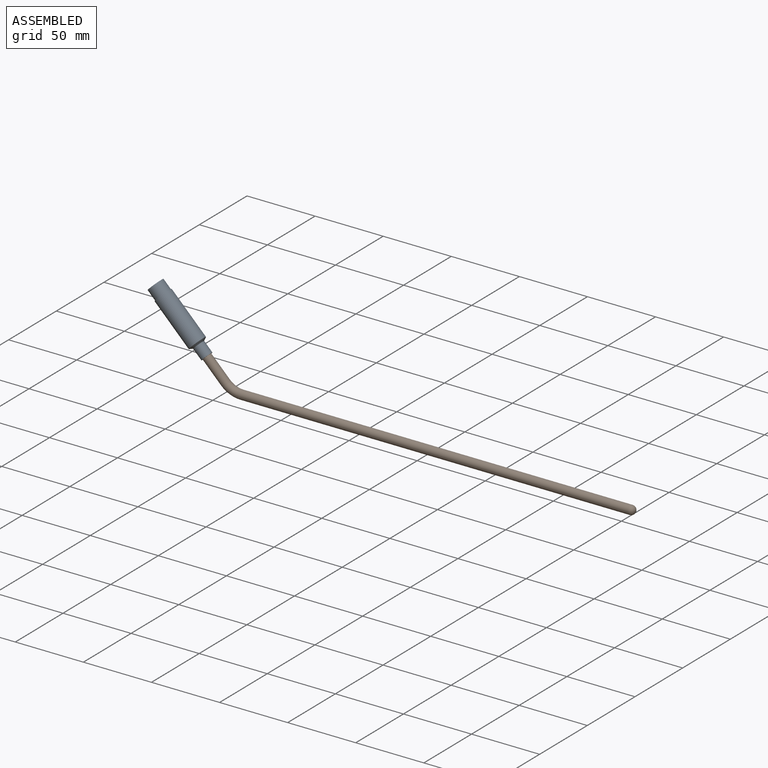
[diagram: assembled view]
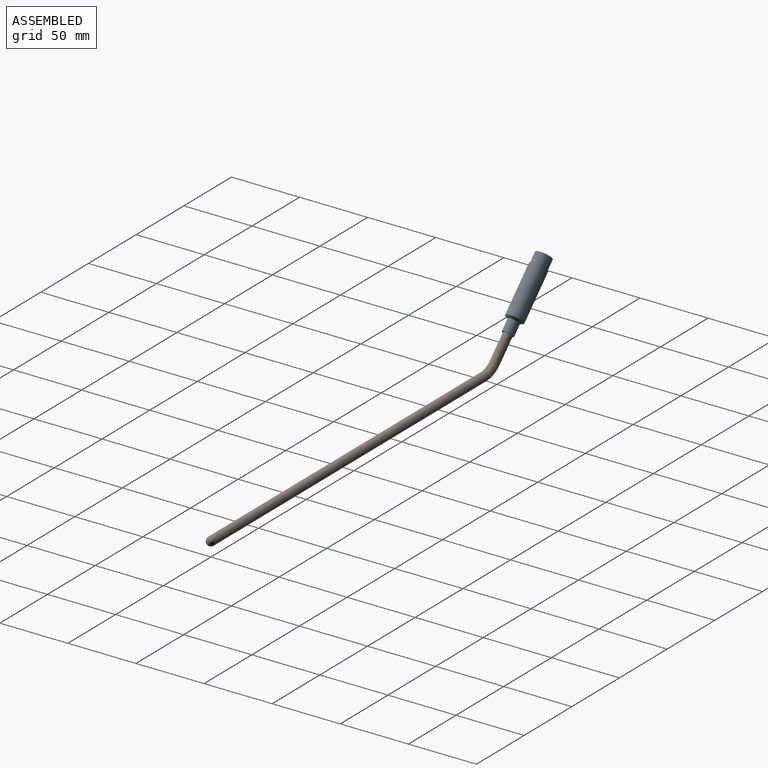
[diagram: assembled view, second angle]
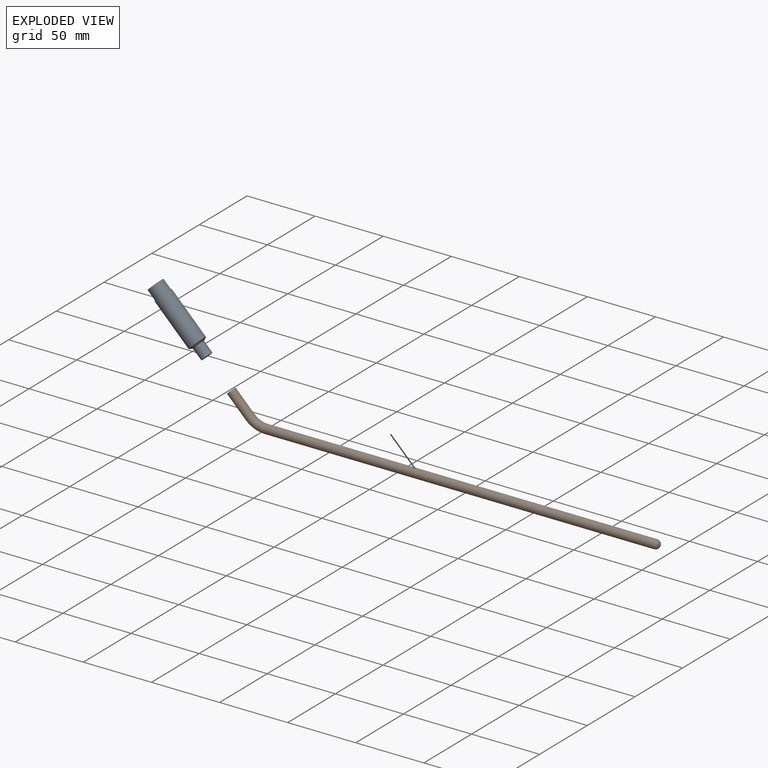
[diagram: exploded view]
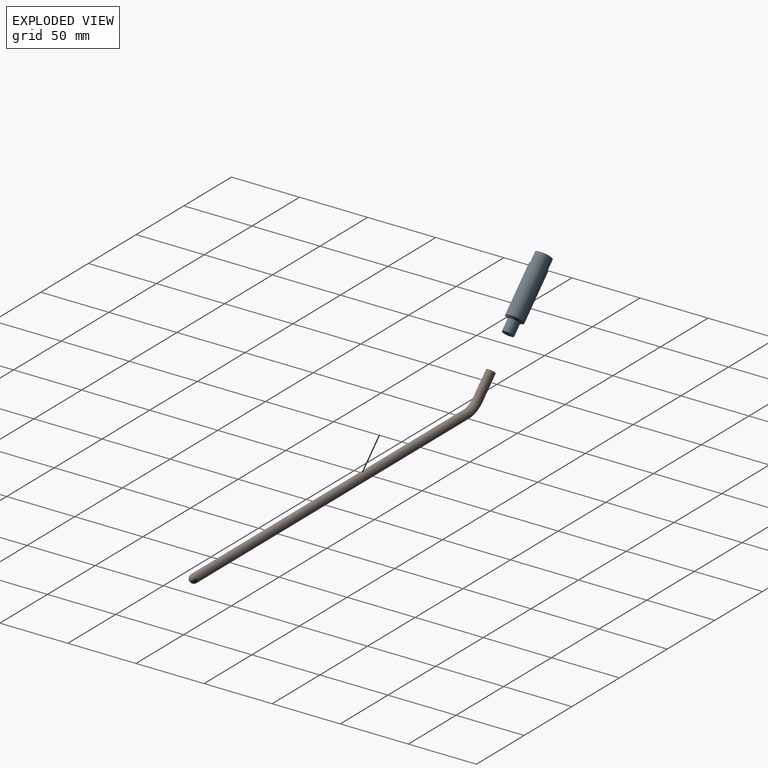
[diagram: exploded view, second angle]
ASSEMBLY  parts=2 mates=2
PART A: 7 faces, bbox 53.3x12.7x12.7 mm
  f0: plane 11.68x11.68mm, normal (-1,0,0), area 107.2mm2, adj f6
  f1: plane 8.13x8.13mm, normal (1,0,0), area 51.9mm2, adj f2
  f2: cylinder r=4.06mm len=8.64mm, axis (-1,0,0), area 220.5mm2, adj f1,f3
  f3: cone r=4.06mm half-angle=60deg, axis (-1,0,0), area 86.4mm2, adj f2,f4
  f4: cylinder r=6.35mm len=35.51mm, axis (-1,0,0), area 1416.8mm2, adj f3,f5
  f5: plane 12.7x12.7mm, normal (-1,0,0), area 19.5mm2, adj f4,f6
  f6: cylinder r=5.84mm len=11.68mm, axis (-1,0,0), area 289mm2, adj f0,f5
PART B: 5 faces, bbox 316.9x6.4x25.6 mm
  f0: plane 6.35x4.49mm, normal (-0.71,0,0.71), area 31.7mm2, adj f3
  f1: cylinder r=3.17mm len=285.83mm, axis (-1,0,0), area 5702mm2, adj f2,f4
  f2: torus R=17.27mm, axis (0,1,0), area 270.6mm2, adj f1,f3
  f3: cylinder r=3.17mm len=17.96mm, axis (-0.71,0,0.71), area 380mm2, adj f0,f2
  f4: sphere r=3.17mm, area 63.3mm2, adj f1
PLACE A rot(axis=(0,1,0),45deg) t=(-110.26,-30.15,29.87)mm
PLACE B t=(42.47,-30.15,21.91)mm
MATE planar A.f2 <-> B.f3  axis (0.71,0,-0.71) through (16.78,-30.15,40.44)mm
MATE slider B.f3 <-> A.f2  axis (-0.71,0,0.71) through (16.78,-30.15,40.44)mm
